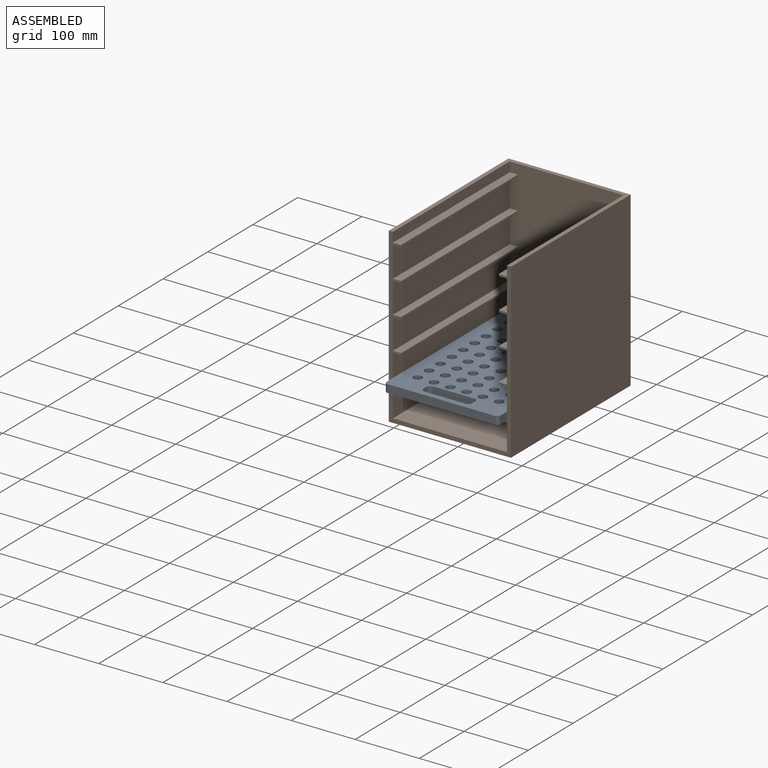
[diagram: assembled view]
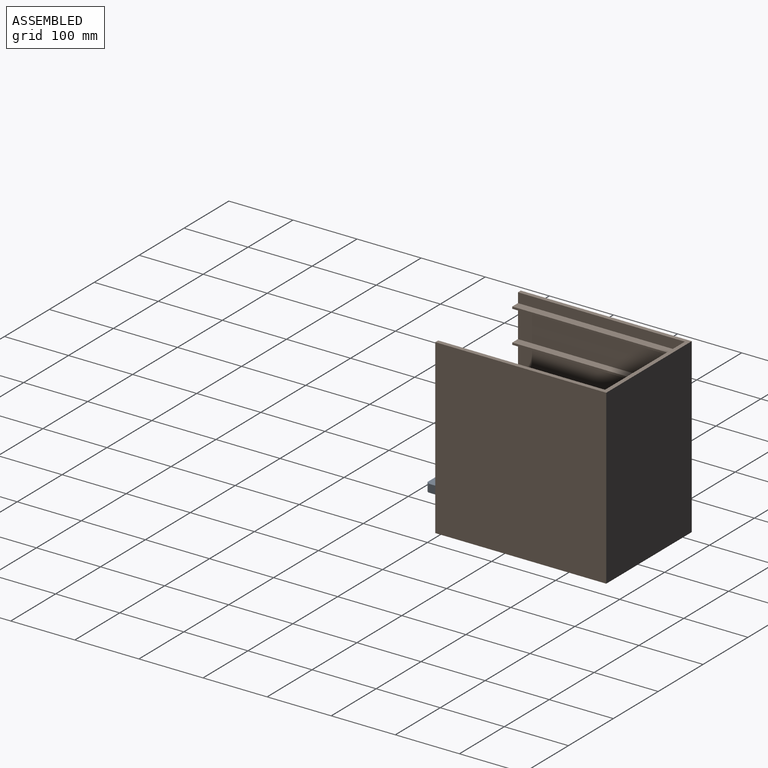
[diagram: assembled view, second angle]
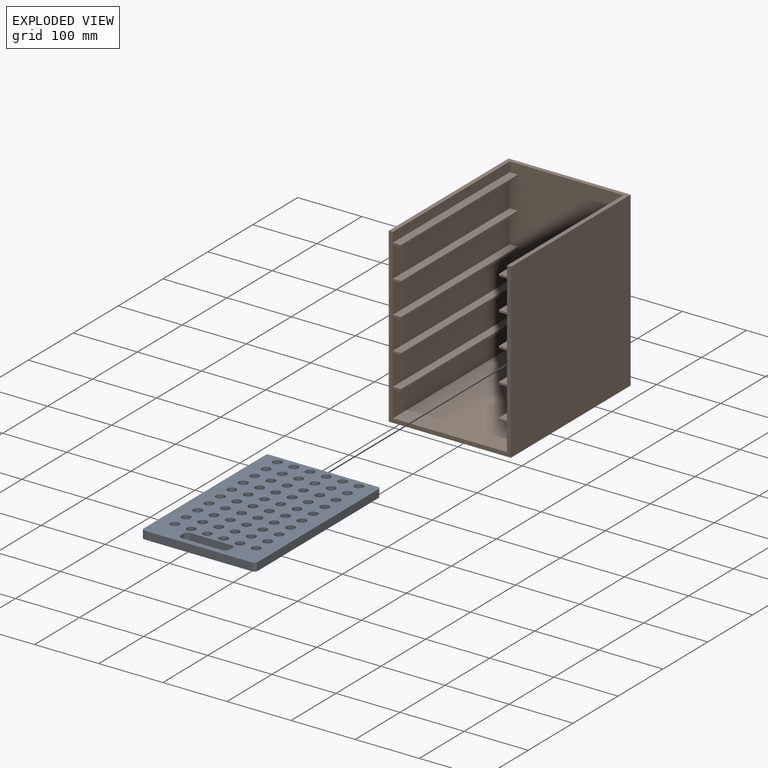
[diagram: exploded view]
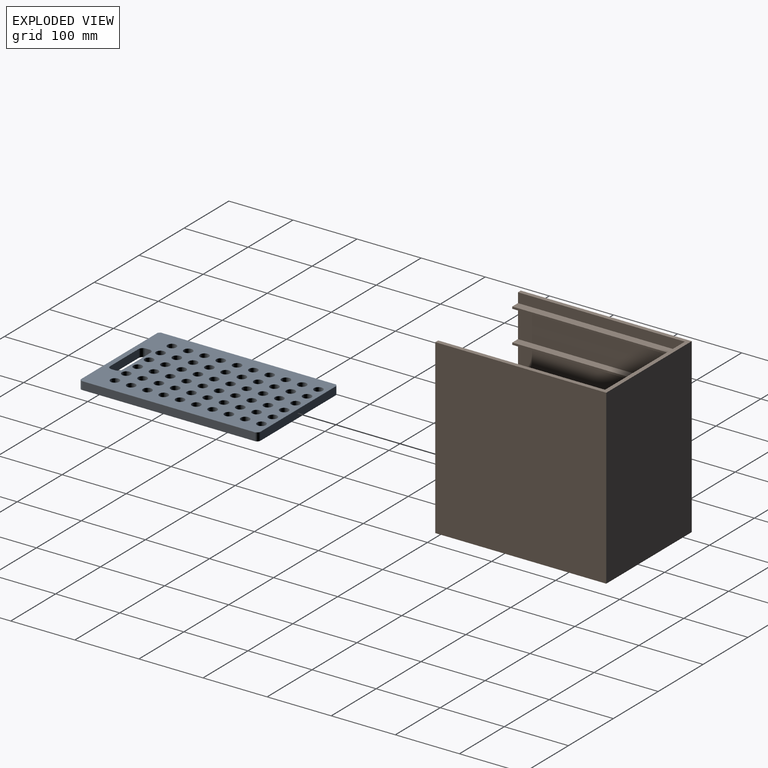
[diagram: exploded view, second angle]
ASSEMBLY  parts=2 mates=3
PART A: 202 faces, bbox 177.8x279.4x12.7 mm
  f0: plane 269.24x12.45mm, normal (-1,0,0), area 3351mm2, adj f5,f187,f191,f192
  f1: plane 167.64x12.45mm, normal (0,-1,0), area 2086.4mm2, adj f5,f189,f192,f193
  f2: plane 269.24x12.45mm, normal (1,0,0), area 3351mm2, adj f5,f188,f190,f193
  f3: plane 167.64x12.45mm, normal (0,1,0), area 2086.4mm2, adj f5,f186,f190,f191
  f4: plane 278.89x177.29mm, normal (0,0,1), area 39148.7mm2, adj f6,f8,f10,f12,f14,f16,f18,f20
  f5: plane 279.4x177.8mm, normal (0,0,-1), area 44513.9mm2, adj f0,f1,f2,f3,f126,f127,f128,f129
  f6: cylinder r=6.86mm len=13.72mm, axis (0,0,1), area 273.6mm2, adj f4,f7
  f7: plane 13.72x13.72mm, normal (0,0,1), area 85.7mm2, adj f6,f153
  f8: cylinder r=6.86mm len=13.72mm, axis (0,0,1), area 273.6mm2, adj f4,f9
  f9: plane 13.72x13.72mm, normal (0,0,1), area 85.7mm2, adj f8,f178
  f10: cylinder r=6.86mm len=13.72mm, axis (0,0,1), area 273.6mm2, adj f4,f11
  f11: plane 13.72x13.72mm, normal (0,0,1), area 85.7mm2, adj f10,f169
  f12: cylinder r=6.86mm len=13.72mm, axis (0,0,1), area 273.6mm2, adj f4,f13
  f13: plane 13.72x13.72mm, normal (0,0,1), area 85.7mm2, adj f12,f168
  f14: cylinder r=6.86mm len=13.72mm, axis (0,0,1), area 273.6mm2, adj f4,f15
  f15: plane 13.72x13.72mm, normal (0,0,1), area 85.7mm2, adj f14,f167
  f16: cylinder r=6.86mm len=13.72mm, axis (0,0,1), area 273.6mm2, adj f4,f17
  f17: plane 13.72x13.72mm, normal (0,0,1), area 85.7mm2, adj f16,f166
  f18: cylinder r=6.86mm len=13.72mm, axis (0,0,1), area 273.6mm2, adj f4,f19
  f19: plane 13.72x13.72mm, normal (0,0,1), area 85.7mm2, adj f18,f165
  f20: cylinder r=6.86mm len=13.72mm, axis (0,0,1), area 273.6mm2, adj f4,f21
  f21: plane 13.72x13.72mm, normal (0,0,1), area 85.7mm2, adj f20,f164
  f22: cylinder r=6.86mm len=13.72mm, axis (0,0,1), area 273.6mm2, adj f4,f23
  f23: plane 13.72x13.72mm, normal (0,0,1), area 85.7mm2, adj f22,f163
  f24: cylinder r=6.86mm len=13.72mm, axis (0,0,1), area 273.6mm2, adj f4,f25
  f25: plane 13.72x13.72mm, normal (0,0,1), area 85.7mm2, adj f24,f183
  f26: cylinder r=6.86mm len=13.72mm, axis (0,0,1), area 273.6mm2, adj f4,f27
  f27: plane 13.72x13.72mm, normal (0,0,1), area 85.7mm2, adj f26,f184
  f28: cylinder r=6.86mm len=13.72mm, axis (0,0,1), area 273.6mm2, adj f4,f29
  f29: plane 13.72x13.72mm, normal (0,0,1), area 85.7mm2, adj f28,f185
  f30: cylinder r=6.86mm len=13.72mm, axis (0,0,1), area 273.6mm2, adj f4,f31
  f31: plane 13.72x13.72mm, normal (0,0,1), area 85.7mm2, adj f30,f177
  f32: cylinder r=6.86mm len=13.72mm, axis (0,0,1), area 273.6mm2, adj f4,f33
  f33: plane 13.72x13.72mm, normal (0,0,1), area 85.7mm2, adj f32,f162
  f34: cylinder r=6.86mm len=13.72mm, axis (0,0,1), area 273.6mm2, adj f4,f35
  f35: plane 13.72x13.72mm, normal (0,0,1), area 85.7mm2, adj f34,f174
  f36: cylinder r=6.86mm len=13.72mm, axis (0,0,1), area 273.6mm2, adj f4,f37
  f37: plane 13.72x13.72mm, normal (0,0,1), area 85.7mm2, adj f36,f175
  f38: cylinder r=6.86mm len=13.72mm, axis (0,0,1), area 273.6mm2, adj f4,f39
  f39: plane 13.72x13.72mm, normal (0,0,1), area 85.7mm2, adj f38,f176
  f40: cylinder r=6.86mm len=13.72mm, axis (0,0,1), area 273.6mm2, adj f4,f41
  f41: plane 13.72x13.72mm, normal (0,0,1), area 85.7mm2, adj f40,f161
  f42: cylinder r=6.86mm len=13.72mm, axis (0,0,1), area 273.6mm2, adj f4,f43
  f43: plane 13.72x13.72mm, normal (0,0,1), area 85.7mm2, adj f42,f160
  f44: cylinder r=6.86mm len=13.72mm, axis (0,0,1), area 273.6mm2, adj f4,f45
  f45: plane 13.72x13.72mm, normal (0,0,1), area 85.7mm2, adj f44,f159
  f46: cylinder r=6.86mm len=13.72mm, axis (0,0,1), area 273.6mm2, adj f4,f47
  f47: plane 13.72x13.72mm, normal (0,0,1), area 85.7mm2, adj f46,f154
  f48: cylinder r=6.86mm len=13.72mm, axis (0,0,1), area 273.6mm2, adj f4,f49
  f49: plane 13.72x13.72mm, normal (0,0,1), area 85.7mm2, adj f48,f126
  f50: cylinder r=6.86mm len=13.72mm, axis (0,0,1), area 273.6mm2, adj f4,f51
  f51: plane 13.72x13.72mm, normal (0,0,1), area 85.7mm2, adj f50,f143
  f52: cylinder r=6.86mm len=13.72mm, axis (0,0,1), area 273.6mm2, adj f4,f53
  f53: plane 13.72x13.72mm, normal (0,0,1), area 85.7mm2, adj f52,f179
  f54: cylinder r=6.86mm len=13.72mm, axis (0,0,1), area 273.6mm2, adj f4,f55
  f55: plane 13.72x13.72mm, normal (0,0,1), area 85.7mm2, adj f54,f155
  f56: cylinder r=6.86mm len=13.72mm, axis (0,0,1), area 273.6mm2, adj f4,f57
  f57: plane 13.72x13.72mm, normal (0,0,1), area 85.7mm2, adj f56,f156
  f58: cylinder r=6.86mm len=13.72mm, axis (0,0,1), area 273.6mm2, adj f4,f59
  f59: plane 13.72x13.72mm, normal (0,0,1), area 85.7mm2, adj f58,f157
  f60: cylinder r=6.86mm len=13.72mm, axis (0,0,1), area 273.6mm2, adj f4,f61
  f61: plane 13.72x13.72mm, normal (0,0,1), area 85.7mm2, adj f60,f158
  f62: cylinder r=6.86mm len=13.72mm, axis (0,0,1), area 273.6mm2, adj f4,f63
  f63: plane 13.72x13.72mm, normal (0,0,1), area 85.7mm2, adj f62,f134
  f64: cylinder r=6.86mm len=13.72mm, axis (0,0,1), area 273.6mm2, adj f4,f65
  f65: plane 13.72x13.72mm, normal (0,0,1), area 85.7mm2, adj f64,f142
  f66: cylinder r=6.86mm len=13.72mm, axis (0,0,1), area 273.6mm2, adj f4,f67
  f67: plane 13.72x13.72mm, normal (0,0,1), area 85.7mm2, adj f66,f141
  f68: cylinder r=6.86mm len=13.72mm, axis (0,0,1), area 273.6mm2, adj f4,f69
  f69: plane 13.72x13.72mm, normal (0,0,1), area 85.7mm2, adj f68,f144
  f70: cylinder r=6.86mm len=13.72mm, axis (0,0,1), area 273.6mm2, adj f4,f71
  f71: plane 13.72x13.72mm, normal (0,0,1), area 85.7mm2, adj f70,f133
  f72: cylinder r=6.86mm len=13.72mm, axis (0,0,1), area 273.6mm2, adj f4,f73
  f73: plane 13.72x13.72mm, normal (0,0,1), area 85.7mm2, adj f72,f132
  f74: cylinder r=6.86mm len=13.72mm, axis (0,0,1), area 273.6mm2, adj f4,f75
  f75: plane 13.72x13.72mm, normal (0,0,1), area 85.7mm2, adj f74,f131
  f76: cylinder r=6.86mm len=13.72mm, axis (0,0,1), area 273.6mm2, adj f4,f77
  f77: plane 13.72x13.72mm, normal (0,0,1), area 85.7mm2, adj f76,f130
  f78: cylinder r=6.86mm len=13.72mm, axis (0,0,1), area 273.6mm2, adj f4,f79
  f79: plane 13.72x13.72mm, normal (0,0,1), area 85.7mm2, adj f78,f145
  f80: cylinder r=6.86mm len=13.72mm, axis (0,0,1), area 273.6mm2, adj f4,f81
  f81: plane 13.72x13.72mm, normal (0,0,1), area 85.7mm2, adj f80,f146
  f82: cylinder r=6.86mm len=13.72mm, axis (0,0,1), area 273.6mm2, adj f4,f83
  f83: plane 13.72x13.72mm, normal (0,0,1), area 85.7mm2, adj f82,f147
  f84: cylinder r=6.86mm len=13.72mm, axis (0,0,1), area 273.6mm2, adj f4,f85
  f85: plane 13.72x13.72mm, normal (0,0,1), area 85.7mm2, adj f84,f148
  f86: cylinder r=6.86mm len=13.72mm, axis (0,0,1), area 273.6mm2, adj f4,f87
  f87: plane 13.72x13.72mm, normal (0,0,1), area 85.7mm2, adj f86,f149
  f88: cylinder r=6.86mm len=13.72mm, axis (0,0,1), area 273.6mm2, adj f4,f89
  f89: plane 13.72x13.72mm, normal (0,0,1), area 85.7mm2, adj f88,f150
  f90: cylinder r=6.86mm len=13.72mm, axis (0,0,1), area 273.6mm2, adj f4,f91
  f91: plane 13.72x13.72mm, normal (0,0,1), area 85.7mm2, adj f90,f151
  f92: cylinder r=6.86mm len=13.72mm, axis (0,0,1), area 273.6mm2, adj f4,f93
  f93: plane 13.72x13.72mm, normal (0,0,1), area 85.7mm2, adj f92,f152
  f94: cylinder r=6.86mm len=13.72mm, axis (0,0,1), area 273.6mm2, adj f4,f95
  f95: plane 13.72x13.72mm, normal (0,0,1), area 85.7mm2, adj f94,f136
  f96: cylinder r=6.86mm len=13.72mm, axis (0,0,1), area 273.6mm2, adj f4,f97
  f97: plane 13.72x13.72mm, normal (0,0,1), area 85.7mm2, adj f96,f137
  f98: cylinder r=6.86mm len=13.72mm, axis (0,0,1), area 273.6mm2, adj f4,f99
  f99: plane 13.72x13.72mm, normal (0,0,1), area 85.7mm2, adj f98,f138
  f100: cylinder r=6.86mm len=13.72mm, axis (0,0,1), area 273.6mm2, adj f4,f101
  f101: plane 13.72x13.72mm, normal (0,0,1), area 85.7mm2, adj f100,f139
  f102: cylinder r=6.86mm len=13.72mm, axis (0,0,1), area 273.6mm2, adj f4,f103
  f103: plane 13.72x13.72mm, normal (0,0,1), area 85.7mm2, adj f102,f182
  f104: cylinder r=6.86mm len=13.72mm, axis (0,0,1), area 273.6mm2, adj f4,f105
  f105: plane 13.72x13.72mm, normal (0,0,1), area 85.7mm2, adj f104,f181
  f106: cylinder r=6.86mm len=13.72mm, axis (0,0,1), area 273.6mm2, adj f4,f107
  f107: plane 13.72x13.72mm, normal (0,0,1), area 85.7mm2, adj f106,f180
  f108: cylinder r=6.86mm len=13.72mm, axis (0,0,1), area 273.6mm2, adj f4,f109
  f109: plane 13.72x13.72mm, normal (0,0,1), area 85.7mm2, adj f108,f140
  f110: cylinder r=6.86mm len=13.72mm, axis (0,0,1), area 273.6mm2, adj f4,f111
  f111: plane 13.72x13.72mm, normal (0,0,1), area 85.7mm2, adj f110,f173
  f112: cylinder r=6.86mm len=13.72mm, axis (0,0,1), area 273.6mm2, adj f4,f113
  f113: plane 13.72x13.72mm, normal (0,0,1), area 85.7mm2, adj f112,f127
  f114: cylinder r=6.86mm len=13.72mm, axis (0,0,1), area 273.6mm2, adj f4,f115
  f115: plane 13.72x13.72mm, normal (0,0,1), area 85.7mm2, adj f114,f128
  f116: cylinder r=6.86mm len=13.72mm, axis (0,0,1), area 273.6mm2, adj f4,f117
  f117: plane 13.72x13.72mm, normal (0,0,1), area 85.7mm2, adj f116,f129
  f118: cylinder r=6.86mm len=13.72mm, axis (0,0,1), area 273.6mm2, adj f4,f119
  f119: plane 13.72x13.72mm, normal (0,0,1), area 85.7mm2, adj f118,f172
  f120: cylinder r=6.86mm len=13.72mm, axis (0,0,1), area 273.6mm2, adj f4,f121
  f121: plane 13.72x13.72mm, normal (0,0,1), area 85.7mm2, adj f120,f171
  f122: cylinder r=6.86mm len=13.72mm, axis (0,0,1), area 273.6mm2, adj f4,f123
  f123: plane 13.72x13.72mm, normal (0,0,1), area 85.7mm2, adj f122,f170
  f124: cylinder r=6.86mm len=13.72mm, axis (0,0,1), area 273.6mm2, adj f4,f125
  f125: plane 13.72x13.72mm, normal (0,0,1), area 85.7mm2, adj f124,f135
  f126: cylinder r=4.45mm len=8.89mm, axis (0,0,1), area 177.3mm2, adj f5,f49
  f127: cylinder r=4.45mm len=8.89mm, axis (0,0,1), area 177.3mm2, adj f5,f113
  f128: cylinder r=4.45mm len=8.89mm, axis (0,0,1), area 177.3mm2, adj f5,f115
  f129: cylinder r=4.45mm len=8.89mm, axis (0,0,1), area 177.3mm2, adj f5,f117
  f130: cylinder r=4.45mm len=8.89mm, axis (0,0,1), area 177.3mm2, adj f5,f77
  f131: cylinder r=4.45mm len=8.89mm, axis (0,0,1), area 177.3mm2, adj f5,f75
  f132: cylinder r=4.45mm len=8.89mm, axis (0,0,1), area 177.3mm2, adj f5,f73
  f133: cylinder r=4.45mm len=8.89mm, axis (0,0,1), area 177.3mm2, adj f5,f71
  f134: cylinder r=4.45mm len=8.89mm, axis (0,0,1), area 177.3mm2, adj f5,f63
  f135: cylinder r=4.45mm len=8.89mm, axis (0,0,1), area 177.3mm2, adj f5,f125
  f136: cylinder r=4.45mm len=8.89mm, axis (0,0,1), area 177.3mm2, adj f5,f95
  f137: cylinder r=4.45mm len=8.89mm, axis (0,0,1), area 177.3mm2, adj f5,f97
  f138: cylinder r=4.45mm len=8.89mm, axis (0,0,1), area 177.3mm2, adj f5,f99
  f139: cylinder r=4.45mm len=8.89mm, axis (0,0,1), area 177.3mm2, adj f5,f101
  f140: cylinder r=4.45mm len=8.89mm, axis (0,0,1), area 177.3mm2, adj f5,f109
  f141: cylinder r=4.45mm len=8.89mm, axis (0,0,1), area 177.3mm2, adj f5,f67
  f142: cylinder r=4.45mm len=8.89mm, axis (0,0,1), area 177.3mm2, adj f5,f65
  f143: cylinder r=4.45mm len=8.89mm, axis (0,0,1), area 177.3mm2, adj f5,f51
  f144: cylinder r=4.45mm len=8.89mm, axis (0,0,1), area 177.3mm2, adj f5,f69
  f145: cylinder r=4.45mm len=8.89mm, axis (0,0,1), area 177.3mm2, adj f5,f79
  f146: cylinder r=4.45mm len=8.89mm, axis (0,0,1), area 177.3mm2, adj f5,f81
  f147: cylinder r=4.45mm len=8.89mm, axis (0,0,1), area 177.3mm2, adj f5,f83
  f148: cylinder r=4.45mm len=8.89mm, axis (0,0,1), area 177.3mm2, adj f5,f85
  f149: cylinder r=4.45mm len=8.89mm, axis (0,0,1), area 177.3mm2, adj f5,f87
  f150: cylinder r=4.45mm len=8.89mm, axis (0,0,1), area 177.3mm2, adj f5,f89
  f151: cylinder r=4.45mm len=8.89mm, axis (0,0,1), area 177.3mm2, adj f5,f91
  f152: cylinder r=4.45mm len=8.89mm, axis (0,0,1), area 177.3mm2, adj f5,f93
  f153: cylinder r=4.45mm len=8.89mm, axis (0,0,1), area 177.3mm2, adj f5,f7
  f154: cylinder r=4.45mm len=8.89mm, axis (0,0,1), area 177.3mm2, adj f5,f47
  f155: cylinder r=4.45mm len=8.89mm, axis (0,0,1), area 177.3mm2, adj f5,f55
  f156: cylinder r=4.45mm len=8.89mm, axis (0,0,1), area 177.3mm2, adj f5,f57
  f157: cylinder r=4.45mm len=8.89mm, axis (0,0,1), area 177.3mm2, adj f5,f59
  f158: cylinder r=4.45mm len=8.89mm, axis (0,0,1), area 177.3mm2, adj f5,f61
  f159: cylinder r=4.45mm len=8.89mm, axis (0,0,1), area 177.3mm2, adj f5,f45
  f160: cylinder r=4.45mm len=8.89mm, axis (0,0,1), area 177.3mm2, adj f5,f43
  f161: cylinder r=4.45mm len=8.89mm, axis (0,0,1), area 177.3mm2, adj f5,f41
  f162: cylinder r=4.45mm len=8.89mm, axis (0,0,1), area 177.3mm2, adj f5,f33
  f163: cylinder r=4.45mm len=8.89mm, axis (0,0,1), area 177.3mm2, adj f5,f23
  f164: cylinder r=4.45mm len=8.89mm, axis (0,0,1), area 177.3mm2, adj f5,f21
  f165: cylinder r=4.45mm len=8.89mm, axis (0,0,1), area 177.3mm2, adj f5,f19
  f166: cylinder r=4.45mm len=8.89mm, axis (0,0,1), area 177.3mm2, adj f5,f17
  f167: cylinder r=4.45mm len=8.89mm, axis (0,0,1), area 177.3mm2, adj f5,f15
  f168: cylinder r=4.45mm len=8.89mm, axis (0,0,1), area 177.3mm2, adj f5,f13
  f169: cylinder r=4.45mm len=8.89mm, axis (0,0,1), area 177.3mm2, adj f5,f11
  f170: cylinder r=4.45mm len=8.89mm, axis (0,0,1), area 177.3mm2, adj f5,f123
  f171: cylinder r=4.45mm len=8.89mm, axis (0,0,1), area 177.3mm2, adj f5,f121
  f172: cylinder r=4.45mm len=8.89mm, axis (0,0,1), area 177.3mm2, adj f5,f119
  f173: cylinder r=4.45mm len=8.89mm, axis (0,0,1), area 177.3mm2, adj f5,f111
  f174: cylinder r=4.45mm len=8.89mm, axis (0,0,1), area 177.3mm2, adj f5,f35
  f175: cylinder r=4.45mm len=8.89mm, axis (0,0,1), area 177.3mm2, adj f5,f37
  f176: cylinder r=4.45mm len=8.89mm, axis (0,0,1), area 177.3mm2, adj f5,f39
  f177: cylinder r=4.45mm len=8.89mm, axis (0,0,1), area 177.3mm2, adj f5,f31
  f178: cylinder r=4.45mm len=8.89mm, axis (0,0,1), area 177.3mm2, adj f5,f9
  f179: cylinder r=4.45mm len=8.89mm, axis (0,0,1), area 177.3mm2, adj f5,f53
  f180: cylinder r=4.45mm len=8.89mm, axis (0,0,1), area 177.3mm2, adj f5,f107
  f181: cylinder r=4.45mm len=8.89mm, axis (0,0,1), area 177.3mm2, adj f5,f105
  f182: cylinder r=4.45mm len=8.89mm, axis (0,0,1), area 177.3mm2, adj f5,f103
  f183: cylinder r=4.45mm len=8.89mm, axis (0,0,1), area 177.3mm2, adj f5,f25
  f184: cylinder r=4.45mm len=8.89mm, axis (0,0,1), area 177.3mm2, adj f5,f27
  f185: cylinder r=4.45mm len=8.89mm, axis (0,0,1), area 177.3mm2, adj f5,f29
  f186: plane 170.81x0.25mm, normal (0,0.71,0.71), area 61mm2, adj f3,f4,f190,f191
  f187: plane 272.41x0.25mm, normal (-0.71,0,0.71), area 97.5mm2, adj f0,f4,f191,f192
  f188: plane 272.41x0.25mm, normal (0.71,0,0.71), area 97.5mm2, adj f2,f4,f190,f193
  f189: plane 170.81x0.25mm, normal (0,-0.71,0.71), area 61mm2, adj f1,f4,f192,f193
  f190: cylinder r=5.08mm len=12.7mm, axis (0,0,1), area 100.8mm2, adj f2,f3,f4,f5,f186,f188
  f191: cylinder r=5.08mm len=12.7mm, axis (0,0,-1), area 100.8mm2, adj f0,f3,f4,f5,f186,f187
  f192: cylinder r=5.08mm len=12.7mm, axis (0,0,1), area 100.8mm2, adj f0,f1,f4,f5,f187,f189
  f193: cylinder r=5.08mm len=12.7mm, axis (0,0,-1), area 100.8mm2, adj f1,f2,f4,f5,f188,f189
  f194: plane 63.5x12.7mm, normal (0,1,0), area 806.5mm2, adj f4,f5,f195,f201
  f195: cylinder r=6.35mm len=12.7mm, axis (0,0,1), area 126.7mm2, adj f4,f5,f194,f196
  f196: plane 12.7x6.35mm, normal (-1,0,0), area 80.6mm2, adj f4,f5,f195,f197
  f197: cylinder r=6.35mm len=12.7mm, axis (0,0,1), area 126.7mm2, adj f4,f5,f196,f198
  f198: plane 63.5x12.7mm, normal (0,-1,0), area 806.5mm2, adj f4,f5,f197,f199
  f199: cylinder r=6.35mm len=12.7mm, axis (0,0,1), area 126.7mm2, adj f4,f5,f198,f200
  f200: plane 12.7x6.35mm, normal (1,0,0), area 80.6mm2, adj f4,f5,f199,f201
  f201: cylinder r=6.35mm len=12.7mm, axis (0,0,1), area 126.7mm2, adj f4,f5,f194,f200
PART B: 50 faces, bbox 190.5x266.7x269.2 mm
  f0: plane 266.7x190.5mm, normal (0,0,1), area 4516.1mm2, adj f1,f2,f4,f5,f6,f48,f49
  f1: plane 269.24x190.5mm, normal (0,-1,0), area 4951.6mm2, adj f0,f2,f3,f4,f6,f7,f8,f9
  f2: plane 269.24x266.7mm, normal (-1,0,0), area 71806.3mm2, adj f0,f1,f3,f5
  f3: plane 266.7x190.5mm, normal (0,0,-1), area 50806.3mm2, adj f1,f2,f4,f5
  f4: plane 269.24x266.7mm, normal (1,0,0), area 71806.3mm2, adj f0,f1,f3,f5
  f5: plane 269.24x190.5mm, normal (0,1,0), area 51290.2mm2, adj f0,f2,f3,f4
  f6: plane 260.35x15.24mm, normal (1,0,0), area 3967.7mm2, adj f0,f1,f7,f49
  f7: plane 260.35x12.7mm, normal (0,0,1), area 3306.4mm2, adj f1,f6,f8,f49
  f8: plane 260.35x3.18mm, normal (1,0,0), area 826.6mm2, adj f1,f7,f9,f49
  f9: plane 260.35x12.7mm, normal (0,0,-1), area 3306.4mm2, adj f1,f8,f10,f49
  f10: plane 260.35x47.63mm, normal (1,0,0), area 12399.2mm2, adj f1,f9,f11,f49
  f11: plane 260.35x12.7mm, normal (0,0,1), area 3306.4mm2, adj f1,f10,f12,f49
  f12: plane 260.35x3.18mm, normal (1,0,0), area 826.6mm2, adj f1,f11,f13,f49
  f13: plane 260.35x12.7mm, normal (0,0,-1), area 3306.4mm2, adj f1,f12,f14,f49
  f14: plane 260.35x47.63mm, normal (1,0,0), area 12399.2mm2, adj f1,f13,f15,f49
  f15: plane 260.35x12.7mm, normal (0,0,1), area 3306.4mm2, adj f1,f14,f16,f49
  f16: plane 260.35x3.18mm, normal (1,0,0), area 826.6mm2, adj f1,f15,f17,f49
  f17: plane 260.35x12.7mm, normal (0,0,-1), area 3306.4mm2, adj f1,f16,f18,f49
  f18: plane 260.35x47.63mm, normal (1,0,0), area 12399.2mm2, adj f1,f17,f19,f49
  f19: plane 260.35x12.7mm, normal (0,0,1), area 3306.4mm2, adj f1,f18,f20,f49
  f20: plane 260.35x3.18mm, normal (1,0,0), area 826.6mm2, adj f1,f19,f21,f49
  f21: plane 260.35x12.7mm, normal (0,0,-1), area 3306.4mm2, adj f1,f20,f22,f49
  f22: plane 260.35x47.63mm, normal (1,0,0), area 12399.2mm2, adj f1,f21,f23,f49
  f23: plane 260.35x12.7mm, normal (0,0,1), area 3306.4mm2, adj f1,f22,f24,f49
  f24: plane 260.35x3.18mm, normal (1,0,0), area 826.6mm2, adj f1,f23,f25,f49
  f25: plane 260.35x12.7mm, normal (0,0,-1), area 3306.4mm2, adj f1,f24,f26,f49
  f26: plane 260.35x41.28mm, normal (1,0,0), area 10745.9mm2, adj f1,f25,f27,f49
  f27: plane 260.35x177.8mm, normal (0,0,1), area 46290.2mm2, adj f1,f26,f28,f49
  f28: plane 260.35x41.28mm, normal (-1,0,0), area 10745.9mm2, adj f1,f27,f29,f49
  f29: plane 260.35x12.7mm, normal (0,0,-1), area 3306.4mm2, adj f1,f28,f30,f49
  f30: plane 260.35x3.18mm, normal (-1,0,0), area 826.6mm2, adj f1,f29,f31,f49
  f31: plane 260.35x12.7mm, normal (0,0,1), area 3306.4mm2, adj f1,f30,f32,f49
  f32: plane 260.35x47.63mm, normal (-1,0,0), area 12399.2mm2, adj f1,f31,f33,f49
  f33: plane 260.35x12.7mm, normal (0,0,-1), area 3306.4mm2, adj f1,f32,f34,f49
  f34: plane 260.35x3.18mm, normal (-1,0,0), area 826.6mm2, adj f1,f33,f35,f49
  f35: plane 260.35x12.7mm, normal (0,0,1), area 3306.4mm2, adj f1,f34,f36,f49
  f36: plane 260.35x47.63mm, normal (-1,0,0), area 12399.2mm2, adj f1,f35,f37,f49
  f37: plane 260.35x12.7mm, normal (0,0,-1), area 3306.4mm2, adj f1,f36,f38,f49
  f38: plane 260.35x3.18mm, normal (-1,0,0), area 826.6mm2, adj f1,f37,f39,f49
  f39: plane 260.35x12.7mm, normal (0,0,1), area 3306.4mm2, adj f1,f38,f40,f49
  f40: plane 260.35x47.63mm, normal (-1,0,0), area 12399.2mm2, adj f1,f39,f41,f49
  f41: plane 260.35x12.7mm, normal (0,0,-1), area 3306.4mm2, adj f1,f40,f42,f49
  f42: plane 260.35x3.18mm, normal (-1,0,0), area 826.6mm2, adj f1,f41,f43,f49
  f43: plane 260.35x12.7mm, normal (0,0,1), area 3306.4mm2, adj f1,f42,f44,f49
  f44: plane 260.35x47.63mm, normal (-1,0,0), area 12399.2mm2, adj f1,f43,f45,f49
  f45: plane 260.35x12.7mm, normal (0,0,-1), area 3306.4mm2, adj f1,f44,f46,f49
  f46: plane 260.35x3.18mm, normal (-1,0,0), area 826.6mm2, adj f1,f45,f47,f49
  f47: plane 260.35x12.7mm, normal (0,0,1), area 3306.4mm2, adj f1,f46,f48,f49
  f48: plane 260.35x15.24mm, normal (-1,0,0), area 3967.7mm2, adj f0,f1,f47,f49
  f49: plane 262.89x177.8mm, normal (0,-1,0), area 46338.6mm2, adj f0,f6,f7,f8,f9,f10,f11,f12
PLACE A t=(-201.47,-418.88,-71.71)mm
PLACE B t=(-207.82,-133.13,-122.51)mm
MATE planar B.f49 <-> A.f3  axis (0,-1,0) through (-112.57,-139.48,15.17)mm
MATE planar B.f23 <-> A.f192  axis (0,0,1) through (-195.12,-269.65,-71.71)mm
MATE planar B.f14 <-> A.f0  axis (1,0,0) through (-201.47,-269.65,53.7)mm
